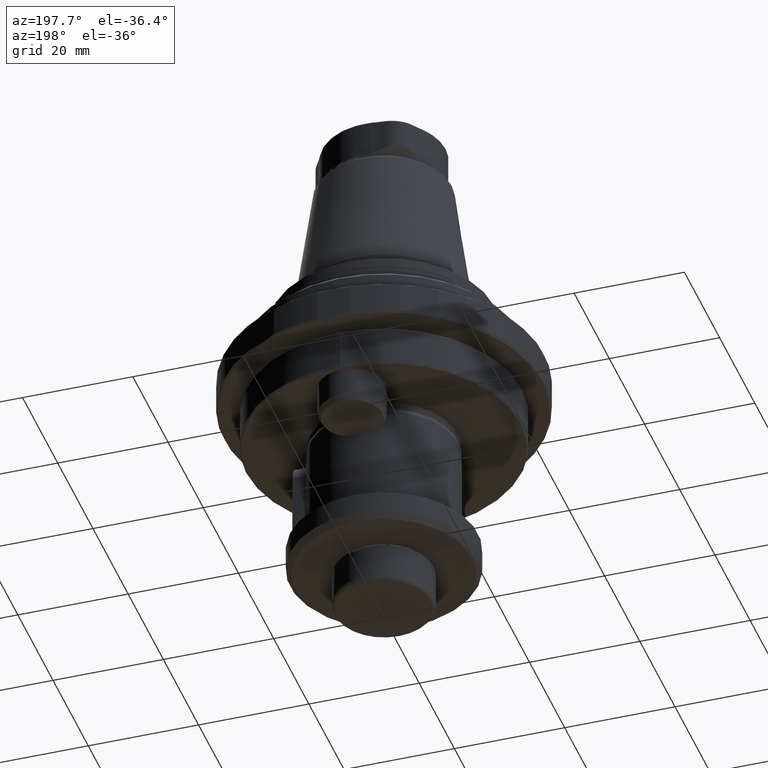
[diagram: clean part render]
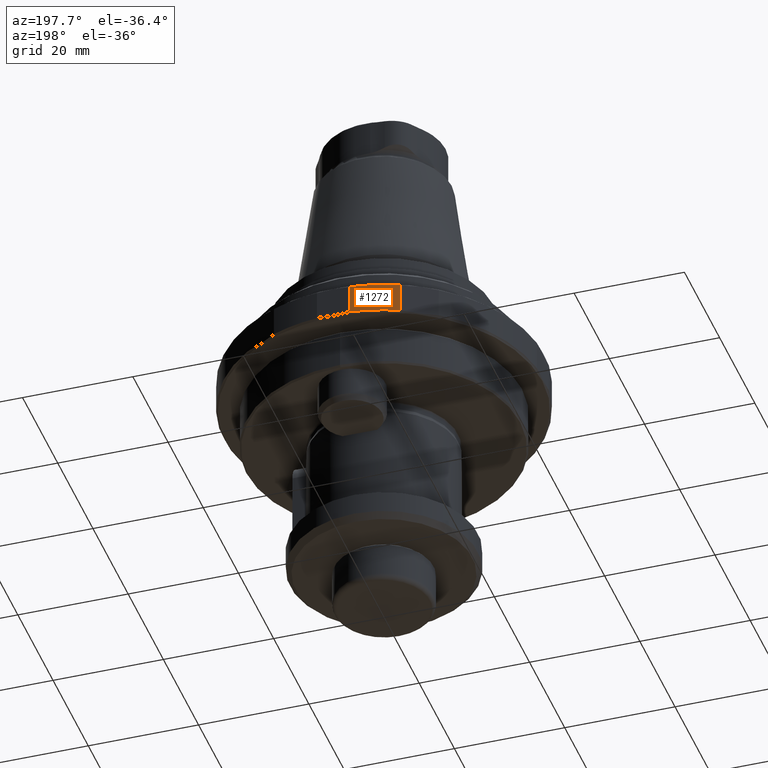
[diagram: same view with one face highlighted and labeled with its STEP entity id]
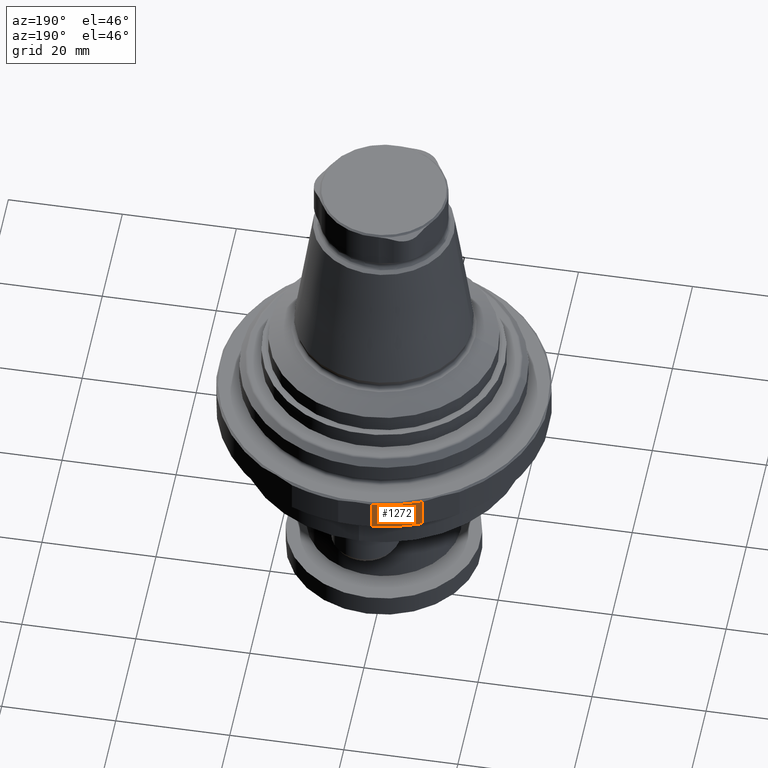
[diagram: same view with one face highlighted and labeled with its STEP entity id]
A machine part, auxiliary view. The second image highlights one B-rep face of the part: STEP entity #1272.
A second angle (auxiliary view) of the same face is appended — the face is thin or edge-on in the first view.
In plain terms, the highlighted cylindrical surface (partial cylindrical patch) has radius 29 mm, axis along (0, 0, -1).
Its self-contained STEP definition (entity closure, byte-faithful):
#76=CIRCLE('',#1387,29.);
#90=CIRCLE('',#1417,29.);
#143=CYLINDRICAL_SURFACE('',#1416,29.);
#174=LINE('',#2080,#218);
#189=LINE('',#2164,#233);
#218=VECTOR('',#1635,1000.);
#233=VECTOR('',#1692,1000.);
#403=ORIENTED_EDGE('',*,*,#636,.T.);
#404=ORIENTED_EDGE('',*,*,#680,.T.);
#405=ORIENTED_EDGE('',*,*,#681,.F.);
#406=ORIENTED_EDGE('',*,*,#650,.T.);
#636=EDGE_CURVE('',#799,#798,#76,.T.);
#650=EDGE_CURVE('',#812,#799,#174,.F.);
#680=EDGE_CURVE('',#798,#827,#189,.T.);
#681=EDGE_CURVE('',#812,#827,#90,.T.);
#798=VERTEX_POINT('',#2030);
#799=VERTEX_POINT('',#2032);
#812=VERTEX_POINT('',#2081);
#827=VERTEX_POINT('',#2163);
#992=EDGE_LOOP('',(#403,#404,#405,#406));
#1128=FACE_BOUND('',#992,.T.);
#1272=ADVANCED_FACE('',(#1128),#143,.T.);
#1387=AXIS2_PLACEMENT_3D('',#2031,#1619,#1620);
#1416=AXIS2_PLACEMENT_3D('',#2165,#1693,#1694);
#1417=AXIS2_PLACEMENT_3D('',#2166,#1695,#1696);
#1619=DIRECTION('',(1.22464605849178E-16,1.04225259501902E-17,-1.));
#1620=DIRECTION('',(-1.,-5.54667823983524E-32,-1.22464605849178E-16));
#1635=DIRECTION('',(1.22464605849178E-16,1.04225259501902E-17,-1.));
#1692=DIRECTION('',(1.22464605849178E-16,1.04225259501902E-17,-1.));
#1693=DIRECTION('',(1.22464605849178E-16,1.04225259501902E-17,-1.));
#1694=DIRECTION('',(-1.,-5.54667823983524E-32,-1.22464605849178E-16));
#1695=DIRECTION('',(1.22464605849178E-16,1.04225259501902E-17,-1.));
#1696=DIRECTION('',(-1.,-5.54667823983524E-32,-1.22464605849178E-16));
#2030=CARTESIAN_POINT('',(-2.94575966433106,28.85,-1.30000000000002));
#2031=CARTESIAN_POINT('',(5.53668419773026E-15,9.69294913367701E-17,-1.30000000000002));
#2032=CARTESIAN_POINT('',(-11.4555136271329,26.6415316289918,-1.30000000000002));
#2080=CARTESIAN_POINT('',(-11.4555136271329,26.6415316289918,-1.00000000000002));
#2081=CARTESIAN_POINT('',(-11.4555136271329,26.6415316289918,-6.70000000000002));
#2163=CARTESIAN_POINT('',(-2.94575966433106,28.85,-6.70000000000002));
#2164=CARTESIAN_POINT('',(-2.94575966433106,28.85,-1.00000000000002));
#2165=CARTESIAN_POINT('',(5.4999448159755E-15,9.3802733551713E-17,-1.00000000000002));
#2166=CARTESIAN_POINT('',(6.19799306931582E-15,1.53211131467797E-16,-6.70000000000002));